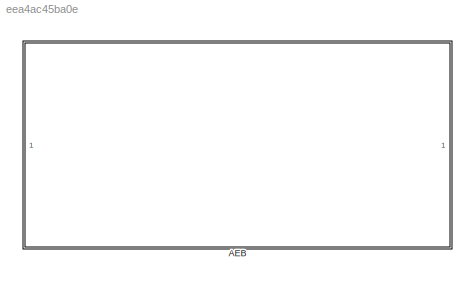
MODEL slx_eea4ac45ba0e
KIND library
CONFIG AbsTol = auto
CONFIG EnableMultiTasking = off
CONFIG FixedStep = auto
CONFIG MaxStep = auto
CONFIG MinStep = auto
CONFIG RelTol = 1e-3
CONFIG SampleTimeConstraint = Unconstrained
CONFIG SolverName = VariableStepAuto
CONFIG StartTime = 0.0
CONFIG StopTime = 10.0
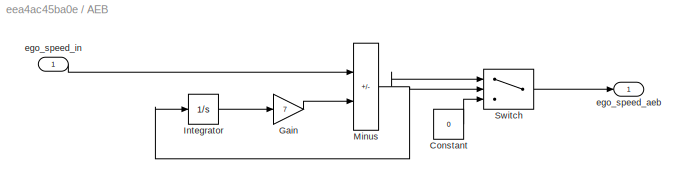
BLOCK [SubSystem] AEB
BLOCK [Constant] AEB/Constant
  Value = 0
BLOCK [Gain] AEB/Gain
  Gain = 7
BLOCK [Integrator] AEB/Integrator
BLOCK [Sum] AEB/Minus
  IconShape = rectangular
  Inputs = +-
BLOCK [Switch] AEB/Switch
  Criteria = u2 > Threshold
  InputSameDT = off
  SaturateOnIntegerOverflow = off
  Threshold = 1
BLOCK [Outport] AEB/ego_speed_aeb
BLOCK [Inport] AEB/ego_speed_in
LINE AEB/Constant:1 -> AEB/Switch:3
LINE AEB/Gain:1 -> AEB/Minus:2
LINE AEB/Integrator:1 -> AEB/Gain:1
NET AEB/Minus:1 -> AEB/Integrator:1, AEB/Switch:1, AEB/Switch:2
LINE AEB/Switch:1 -> AEB/ego_speed_aeb:1
LINE AEB/ego_speed_in:1 -> AEB/Minus:1
note: NET lines group one-source signal fan-out (src -> all destinations, sorted); 1:1 wires keep LINE
